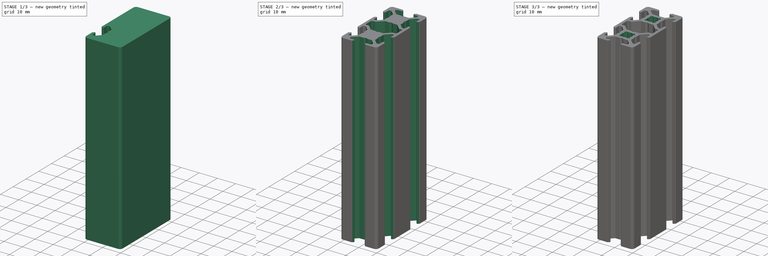
[diagram: build sequence overview — one tinted view per stage of 3, left to right]
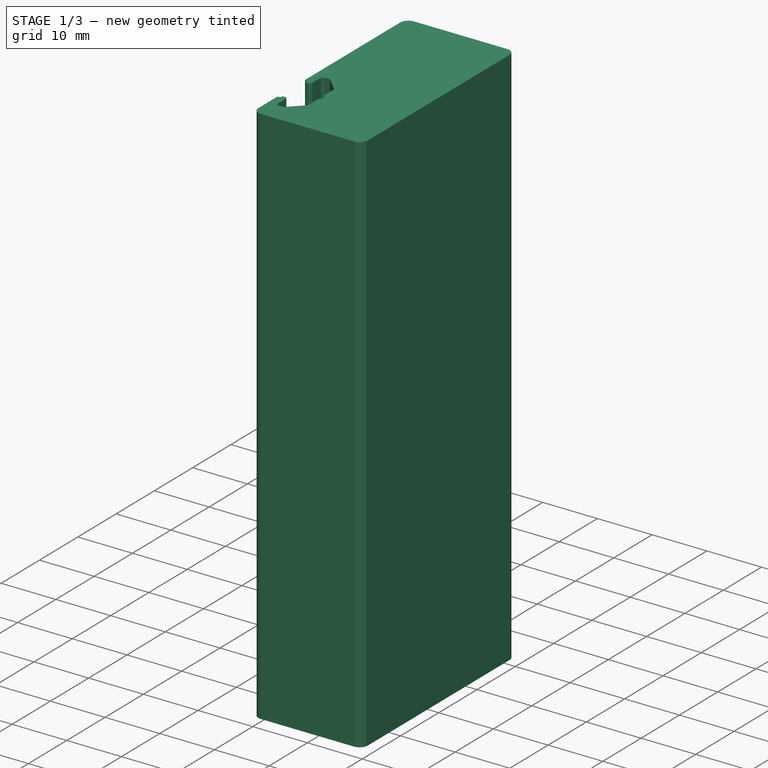
[diagram: stage 1 of 3 — iso view after this stage's code; geometry added in this stage tinted green]
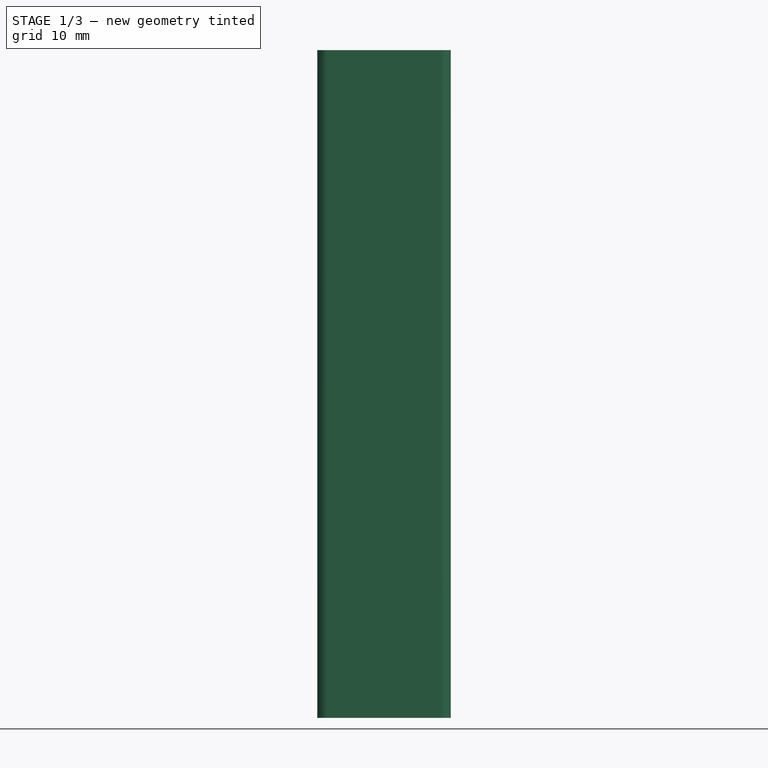
[diagram: stage 1 of 3 — front view after this stage's code; geometry added in this stage tinted green]
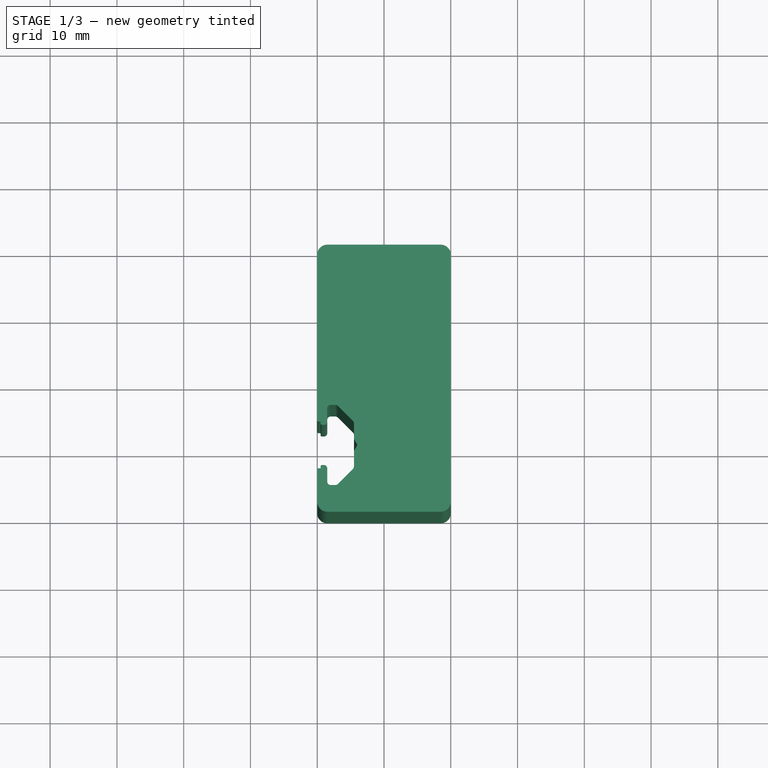
[diagram: stage 1 of 3 — top view after this stage's code; geometry added in this stage tinted green]
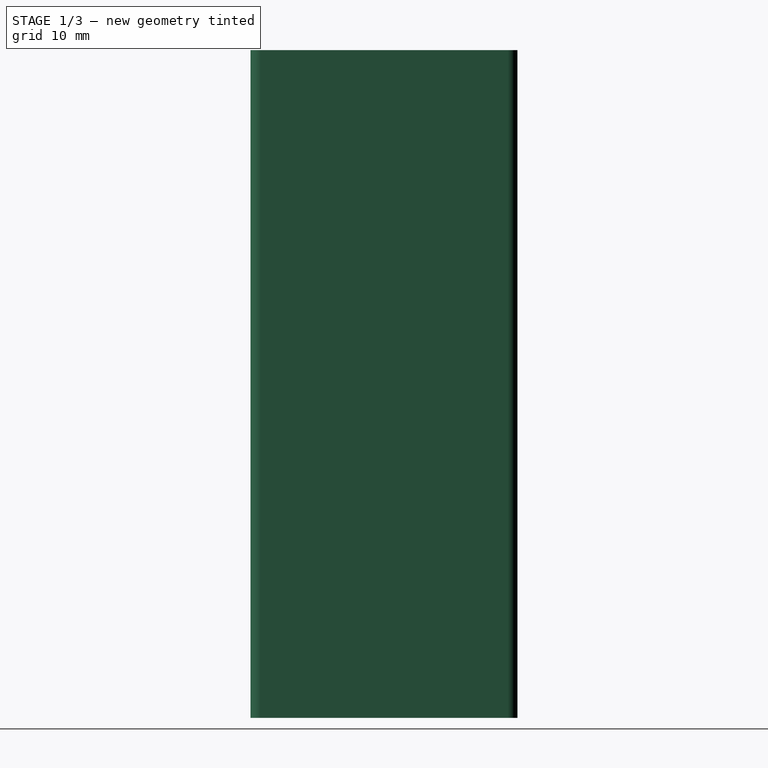
[diagram: stage 1 of 3 — right view after this stage's code; geometry added in this stage tinted green]
FCSTD DOCUMENT  (FreeCAD 0.18R16131 (Git))
Label: Profile-20x40-B-Type_Slot6
License: All rights reserved
LicenseURL: http://en.wikipedia.org/wiki/All_rights_reserved
objects: Sketcher::SketchObject×4, PartDesign::Pocket×3, PartDesign::Mirrored×3, PartDesign::Pad×1, PartDesign::Line×1, PartDesign::PolarPattern×1, PartDesign::MultiTransform×1, PartDesign::Body×1
note: 19 computed .brp shape members not serialized (recipe doc carries the construction recipe); baked Part::Feature solids carry a one-line shape summary decoded from their .brp

FEATURE [Sketcher::SketchObject] Sketch  label="Material_Sketch"
  MapMode = 5
  Support = -> [XY_Plane]
  expr: Constraints[15] = Constraints.Base_Width * 2
  sketch-geometry (8):
    g0: LineSegment StartX=-8.5 StartY=20 StartZ=0 EndX=8.5 EndY=20 EndZ=0
    g1: LineSegment StartX=10 StartY=18.5 StartZ=0 EndX=10 EndY=-18.5 EndZ=0
    g2: LineSegment StartX=8.5 StartY=-20 StartZ=0 EndX=-8.5 EndY=-20 EndZ=0
    g3: LineSegment StartX=-10 StartY=-18.5 StartZ=0 EndX=-10 EndY=18.5 EndZ=0
    g4: ArcOfCircle CenterX=-8.5 CenterY=18.5 CenterZ=0 NormalX=0 NormalY=0 NormalZ=1 AngleXU=0 Radius=1.5 StartAngle=1.5708 EndAngle=3.14159
    g5: ArcOfCircle CenterX=8.5 CenterY=18.5 CenterZ=0 NormalX=0 NormalY=0 NormalZ=1 AngleXU=0 Radius=1.5 StartAngle=0 EndAngle=1.5708
    g6: ArcOfCircle CenterX=-8.5 CenterY=-18.5 CenterZ=0 NormalX=0 NormalY=0 NormalZ=1 AngleXU=0 Radius=1.5 StartAngle=3.14159 EndAngle=4.71239
    g7: ArcOfCircle CenterX=8.5 CenterY=-18.5 CenterZ=0 NormalX=0 NormalY=0 NormalZ=1 AngleXU=0 Radius=1.5 StartAngle=4.71239 EndAngle=6.28319
  constraints (18):
    c: Horizontal(g0)
    c: Vertical(g1)
    c: Vertical(g3)
    c: Tangent(g3,g4) = 1.5708
    c: Tangent(g0,g4) = 1.5708
    c: Tangent(g0,g5) = 1.5708
    c: Tangent(g1,g5) = 1.5708
    c: Radius(g5) = 1.5
    c: Equal(g5,g4)
    c: Tangent(g3,g6) = 1.5708
    c: Tangent(g2,g6) = 1.5708
    c: Tangent(g2,g7) = 1.5708
    c: Tangent(g1,g7) = 1.5708
    c: Equal(g4,g6)
    c: DistanceX(g3,g1) = 20  'Base_Width'
    c: DistanceY(g2,g0) = 40
    c: Symmetric(g3,g1,g-2)
    c: Symmetric(g2,g0,g-1)
FEATURE [PartDesign::Pad] Pad  label="Solid_Material"
  Length = 100
  Length2 = 100
  Profile = -> Sketch
  Type = 0
FEATURE [Sketcher::SketchObject] Sketch001
  MapMode = 5
  Support = -> [XY_Plane]
  expr: Constraints[6] = Sketch.Constraints.Base_Width / 2
  expr: Constraints[3] = Sketch.Constraints.Base_Width
  sketch-geometry (34):
    g0: LineSegment [constr] StartX=-10 StartY=0 StartZ=0 EndX=-10 EndY=-20 EndZ=0
    g1: LineSegment [constr] StartX=-10 StartY=-10 StartZ=0 EndX=10 EndY=-10 EndZ=0
    g2: LineSegment StartX=-9.5 StartY=-6.5 StartZ=0 EndX=-9.5 EndY=-6.8 EndZ=0
    g3: LineSegment StartX=-9.3 StartY=-7 StartZ=0 EndX=-9 EndY=-7 EndZ=0
    g4: LineSegment StartX=-8.5 StartY=-6.5 StartZ=0 EndX=-8.5 EndY=-4.5 EndZ=0
    g5: LineSegment StartX=-8 StartY=-4 StartZ=0 EndX=-7.27 EndY=-4 EndZ=0
    g6: LineSegment StartX=-6.91645 StartY=-4.14645 StartZ=0 EndX=-4.64645 EndY=-6.41645 EndZ=0
    g7: LineSegment StartX=-4.5 StartY=-6.77 StartZ=0 EndX=-4.5 EndY=-9.045 EndZ=0
    g8: LineSegment StartX=-4.47315 StartY=-9.14509 StartZ=0 EndX=-4.03685 EndY=-9.89991 EndZ=0
    g9: LineSegment StartX=-4.03685 StartY=-10.1001 StartZ=0 EndX=-4.47315 EndY=-10.8549 EndZ=0
    g10: LineSegment StartX=-4.5 StartY=-10.955 StartZ=0 EndX=-4.5 EndY=-13.23 EndZ=0
    g11: LineSegment StartX=-4.64645 StartY=-13.5836 StartZ=0 EndX=-6.91645 EndY=-15.8536 EndZ=0
    g12: LineSegment StartX=-7.27 StartY=-16 StartZ=0 EndX=-8 EndY=-16 EndZ=0
    g13: LineSegment StartX=-8.5 StartY=-15.5 StartZ=0 EndX=-8.5 EndY=-13.5 EndZ=0
    g14: LineSegment StartX=-9 StartY=-13 StartZ=0 EndX=-9.3 EndY=-13 EndZ=0
    g15: LineSegment StartX=-9.5 StartY=-13.2 StartZ=0 EndX=-9.5 EndY=-13.5 EndZ=0
    g16: ArcOfCircle CenterX=-9.3 CenterY=-6.8 CenterZ=0 NormalX=0 NormalY=0 NormalZ=1 AngleXU=0 Radius=0.2 StartAngle=3.14159 EndAngle=4.71239
    g17: ArcOfCircle CenterX=-9 CenterY=-6.5 CenterZ=0 NormalX=0 NormalY=0 NormalZ=1 AngleXU=0 Radius=0.5 StartAngle=4.71239 EndAngle=6.28319
    g18: ArcOfCircle CenterX=-8 CenterY=-4.5 CenterZ=0 NormalX=0 NormalY=0 NormalZ=1 AngleXU=0 Radius=0.5 StartAngle=1.5708 EndAngle=3.14159
    g19: ArcOfCircle CenterX=-7.27 CenterY=-4.5 CenterZ=0 NormalX=0 NormalY=0 NormalZ=1 AngleXU=0 Radius=0.5 StartAngle=0.785398 EndAngle=1.5708
    g20: ArcOfCircle CenterX=-5 CenterY=-6.77 CenterZ=0 NormalX=0 NormalY=0 NormalZ=1 AngleXU=0 Radius=0.5 StartAngle=4e-16 EndAngle=0.785398
    g21: ArcOfCircle CenterX=-4.3 CenterY=-9.045 CenterZ=0 NormalX=0 NormalY=0 NormalZ=1 AngleXU=0 Radius=0.2 StartAngle=3.14159 EndAngle=3.6657
    g22: ArcOfCircle CenterX=-4.21 CenterY=-10 CenterZ=0 NormalX=0 NormalY=0 NormalZ=1 AngleXU=0 Radius=0.2 StartAngle=5.75908 EndAngle=6.80729
    g23: ArcOfCircle CenterX=-4.3 CenterY=-10.955 CenterZ=0 NormalX=0 NormalY=0 NormalZ=1 AngleXU=0 Radius=0.2 StartAngle=2.61749 EndAngle=3.14159
    g24: ArcOfCircle CenterX=-5 CenterY=-13.23 CenterZ=0 NormalX=0 NormalY=0 NormalZ=1 AngleXU=0 Radius=0.5 StartAngle=5.49779 EndAngle=6.28319
    g25: ArcOfCircle CenterX=-7.27 CenterY=-15.5 CenterZ=0 NormalX=0 NormalY=0 NormalZ=1 AngleXU=0 Radius=0.5 StartAngle=4.71239 EndAngle=5.49779
    g26: ArcOfCircle CenterX=-8 CenterY=-15.5 CenterZ=0 NormalX=0 NormalY=0 NormalZ=1 AngleXU=0 Radius=0.5 StartAngle=3.14159 EndAngle=4.71239
    g27: ArcOfCircle CenterX=-9 CenterY=-13.5 CenterZ=0 NormalX=0 NormalY=0 NormalZ=1 AngleXU=0 Radius=0.5 StartAngle=0 EndAngle=1.5708
    g28: ArcOfCircle CenterX=-9.3 CenterY=-13.2 CenterZ=0 NormalX=0 NormalY=0 NormalZ=1 AngleXU=0 Radius=0.2 StartAngle=1.5708 EndAngle=3.14159
    g29: LineSegment StartX=-9.5 StartY=-6.5 StartZ=0 EndX=-9.8 EndY=-6.5 EndZ=0
    g30: LineSegment StartX=-9.5 StartY=-13.5 StartZ=0 EndX=-9.8 EndY=-13.5 EndZ=0
    g31: ArcOfCircle CenterX=-9.8 CenterY=-13.7 CenterZ=0 NormalX=0 NormalY=0 NormalZ=1 AngleXU=0 Radius=0.2 StartAngle=1.5708 EndAngle=3.14159
    g32: LineSegment StartX=-10 StartY=-6.3 StartZ=0 EndX=-10 EndY=-13.7 EndZ=0
    g33: ArcOfCircle CenterX=-9.8 CenterY=-6.3 CenterZ=0 NormalX=0 NormalY=0 NormalZ=1 AngleXU=0 Radius=0.2 StartAngle=3.14159 EndAngle=4.71239
  constraints (84):
    c: Vertical(g0)
    c: Horizontal(g1)
    c: Equal(g0,g1)
    c: DistanceY(g0,g0) = 20
    c: Symmetric(g0,g0,g1)
    c: PointOnObject(g0,g-1)
    c: DistanceX(g0,g-1) = 10
    c: Vertical(g2)
    c: Vertical(g4)
    c: Horizontal(g5)
    c: Vertical(g7)
    c: Vertical(g10)
    c: Vertical(g13)
    c: Horizontal(g14)
    c: Vertical(g15)
    c: Horizontal(g3)
    c: Horizontal(g12)
    c: Symmetric(g2,g15,g1)
    c: Tangent(g2,g16) = -1.5708
    c: Tangent(g3,g16) = -1.5708
    c: Tangent(g3,g17) = -1.5708
    c: Tangent(g4,g17) = -1.5708
    c: Tangent(g4,g18) = 1.5708
    c: Tangent(g5,g18) = 1.5708
    c: Tangent(g5,g19) = 1.5708
    c: Tangent(g6,g19) = 1.5708
    c: Tangent(g6,g20) = 1.5708
    c: Tangent(g7,g20) = 1.5708
    c: Tangent(g7,g21) = -1.5708
    c: Tangent(g8,g21) = -1.5708
    c: Tangent(g8,g22) = 1.5708
    c: Tangent(g9,g22) = 1.5708
    c: Tangent(g10,g23) = -1.5708
    c: Tangent(g9,g23) = -1.5708
    c: Tangent(g10,g24) = 1.5708
    c: Tangent(g11,g24) = 1.5708
    c: Tangent(g11,g25) = 1.5708
    c: Tangent(g12,g25) = 1.5708
    c: Tangent(g12,g26) = 1.5708
    c: Tangent(g13,g26) = 1.5708
    c: Tangent(g14,g27) = -1.5708
    c: Tangent(g13,g27) = -1.5708
    c: Tangent(g15,g28) = -1.5708
    c: Tangent(g14,g28) = -1.5708
    c: Equal(g16,g28)
    c: Equal(g17,g27)
    c: Equal(g20,g24)
    c: Radius(g17) = 0.5
    c: Radius(g16) = 0.2
    c: Radius(g18) = 0.5
    c: Radius(g19) = 0.5
    c: Radius(g20) = 0.5
    c: Radius(g21) = 0.2
    c: Radius(g22) = 0.2
    c: PointOnObject(g22,g1)
    c: Coincident(g2,g29)
    c: Coincident(g15,g30)
    c: Horizontal(g30)
    c: Tangent(g30,g31) = -1.5708
    c: Symmetric(g31,g32,g1)
    c: Coincident(g32,g31)
    c: Horizontal(g29)
    c: Symmetric(g18,g26,g1)
    c: Symmetric(g20,g24,g1)
    c: Symmetric(g21,g23,g1)
    c: Symmetric(g17,g27,g1)
    c: DistanceY(g14,g3) = 6
    c: DistanceY(g12,g5) = 12
    c: DistanceY(g24,g20) = 6.46
    c: DistanceX(g31,g24) = 5
    c: DistanceX(g31,g25) = 2.73
    c: DistanceX(g31,g22) = 5.79
    c: Symmetric(g19,g25,g1)
    c: Tangent(g31,g0) = -1.5708
    c: DistanceX(g31,g15) = 0.5
    c: DistanceY(g23,g21) = 1.91
    c: DistanceX(g31,g13) = 1.5
    c: Coincident(g33,g29)
    c: Coincident(g33,g32)
    c: Tangent(g32,g0) = -1.5708
    c: Radius(g33) = 0.2
    c: Equal(g33,g31)
    c: Symmetric(g31,g33,g1)
    c: DistanceY(g15,g2) = 7
FEATURE [PartDesign::Pocket] Pocket  label="Slot"
  BaseFeature = -> Pad
  Length = 5
  Length2 = 100
  Profile = -> Sketch001
  Reversed = true
  Type = 1
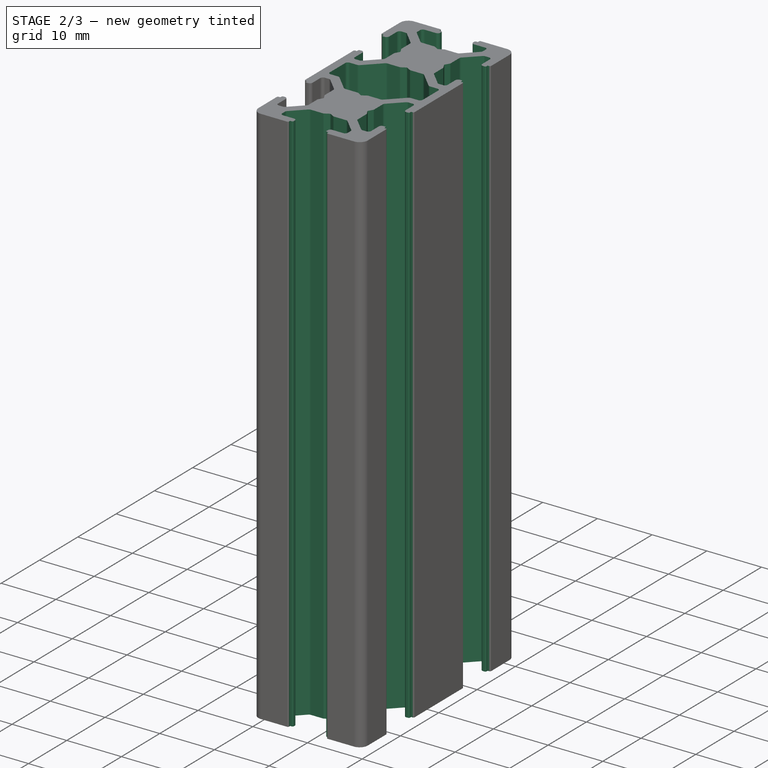
[diagram: stage 2 of 3 — iso view after this stage's code; geometry added in this stage tinted green]
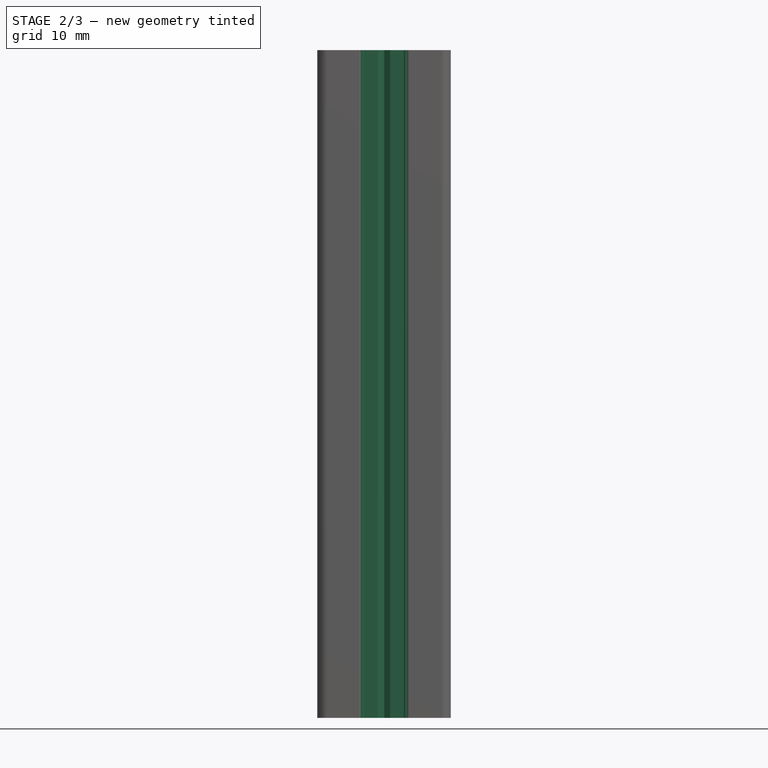
[diagram: stage 2 of 3 — front view after this stage's code; geometry added in this stage tinted green]
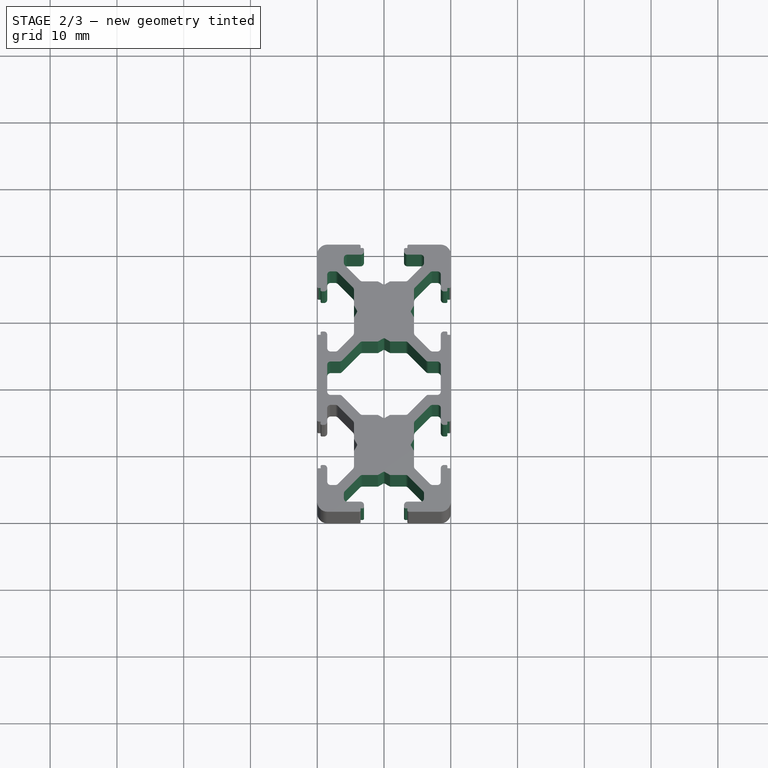
[diagram: stage 2 of 3 — top view after this stage's code; geometry added in this stage tinted green]
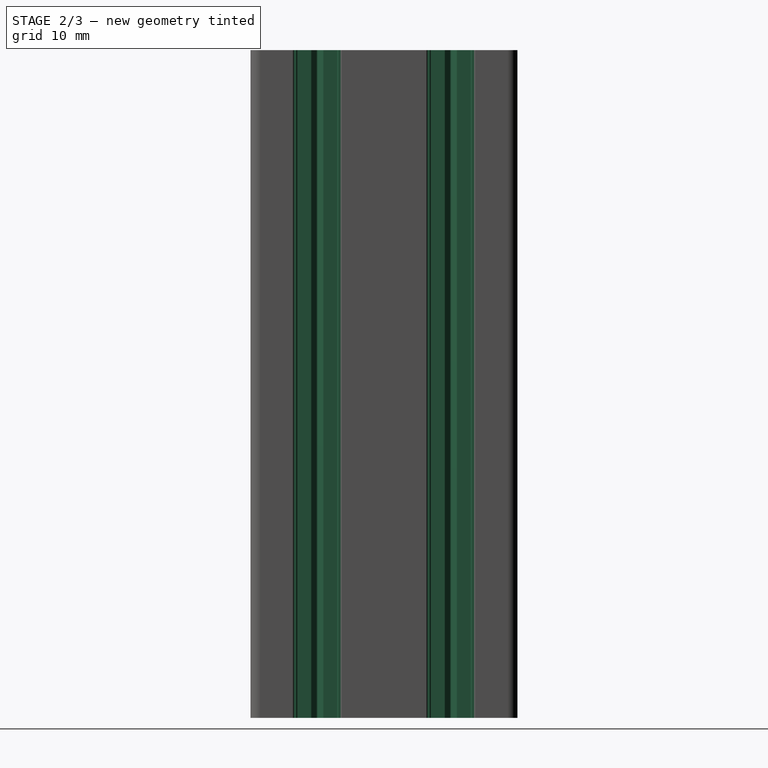
[diagram: stage 2 of 3 — right view after this stage's code; geometry added in this stage tinted green]
FEATURE [PartDesign::Line] DatumLine
  AttacherType = Attacher::AttachEngineLine
  AttachmentOffset = pos=(0,-10,0) rot=(0,0,1;0rad)
  MapMode = 29
  Placement = pos=(0,-10,3.3e-15) rot=(0,0,1;0rad)
  Support = -> [Z_Axis]
  expr: AttachmentOffset.Base.y = -Sketch.Constraints.Base_Width / 2
FEATURE [PartDesign::PolarPattern] PolarPattern
  Angle = 180
  Axis = -> DatumLine
  Occurrences = 3
FEATURE [PartDesign::Mirrored] Mirrored
  MirrorPlane = -> XZ_Plane
FEATURE [PartDesign::MultiTransform] MultiTransform
  BaseFeature = -> Pocket
  Originals = -> [Pocket]
  Transformations = -> [PolarPattern,Mirrored]
FEATURE [Sketcher::SketchObject] Sketch003
  MapMode = 5
  Support = -> [XY_Plane]
  sketch-geometry (20):
    g0: LineSegment StartX=-8.5 StartY=0 StartZ=0 EndX=-8.5 EndY=-2 EndZ=0
    g1: LineSegment StartX=-8 StartY=-2.5 StartZ=0 EndX=-6.645 EndY=-2.5 EndZ=0
    g2: LineSegment StartX=-6.2915 StartY=-2.6464 StartZ=0 EndX=-3.5835 EndY=-5.3536 EndZ=0
    g3: LineSegment StartX=-3.23 StartY=-5.5 StartZ=0 EndX=-0.955 EndY=-5.5 EndZ=0
    g4: LineSegment StartX=3.5835 StartY=-5.3536 StartZ=0 EndX=6.2915 EndY=-2.6464 EndZ=0
    g5: LineSegment StartX=6.645 StartY=-2.5 StartZ=0 EndX=8 EndY=-2.5 EndZ=0
    g6: LineSegment StartX=8.5 StartY=-2 StartZ=0 EndX=8.5 EndY=0 EndZ=0
    g7: LineSegment StartX=8.5 StartY=0 StartZ=0 EndX=-8.5 EndY=0 EndZ=0
    g8: ArcOfCircle CenterX=-8 CenterY=-2 CenterZ=0 NormalX=0 NormalY=0 NormalZ=1 AngleXU=0 Radius=0.5 StartAngle=3.14159 EndAngle=4.71239
    g9: ArcOfCircle CenterX=-6.645 CenterY=-3 CenterZ=0 NormalX=0 NormalY=0 NormalZ=1 AngleXU=0 Radius=0.5 StartAngle=0.785543 EndAngle=1.5708
    g10: ArcOfCircle CenterX=-3.23 CenterY=-5 CenterZ=0 NormalX=0 NormalY=0 NormalZ=1 AngleXU=0 Radius=0.5 StartAngle=3.92714 EndAngle=4.71239
    g11: ArcOfCircle CenterX=3.23 CenterY=-5 CenterZ=0 NormalX=0 NormalY=0 NormalZ=1 AngleXU=0 Radius=0.5 StartAngle=4.71239 EndAngle=5.49764
    g12: ArcOfCircle CenterX=6.645 CenterY=-3 CenterZ=0 NormalX=0 NormalY=0 NormalZ=1 AngleXU=0 Radius=0.5 StartAngle=1.5708 EndAngle=2.35605
    g13: ArcOfCircle CenterX=8 CenterY=-2 CenterZ=0 NormalX=0 NormalY=0 NormalZ=1 AngleXU=0 Radius=0.5 StartAngle=4.71239 EndAngle=6.28319
    g14: LineSegment StartX=-0.854912 StartY=-5.52685 StartZ=0 EndX=-0.100088 EndY=-5.96315 EndZ=0
    g15: LineSegment StartX=0.100088 StartY=-5.96315 StartZ=0 EndX=0.854912 EndY=-5.52685 EndZ=0
    g16: LineSegment StartX=0.955 StartY=-5.5 StartZ=0 EndX=3.23 EndY=-5.5 EndZ=0
    g17: ArcOfCircle CenterX=-0.955 CenterY=-5.7 CenterZ=0 NormalX=0 NormalY=0 NormalZ=1 AngleXU=0 Radius=0.2 StartAngle=1.04669 EndAngle=1.5708
    g18: ArcOfCircle CenterX=0 CenterY=-5.79 CenterZ=0 NormalX=0 NormalY=0 NormalZ=1 AngleXU=0 Radius=0.2 StartAngle=4.18828 EndAngle=5.23649
    g19: ArcOfCircle CenterX=0.955 CenterY=-5.7 CenterZ=0 NormalX=0 NormalY=0 NormalZ=1 AngleXU=0 Radius=0.2 StartAngle=1.5708 EndAngle=2.0949
  constraints (46):
    c: PointOnObject(g0,g-1)
    c: Vertical(g0)
    c: Horizontal(g1)
    c: Horizontal(g3)
    c: Horizontal(g5)
    c: Vertical(g6)
    c: Coincident(g6,g7)
    c: Coincident(g7,g0)
    c: Symmetric(g0,g6,g-2)
    c: Tangent(g0,g8) = -1.5708
    c: Tangent(g1,g8) = -1.5708
    c: Tangent(g1,g9) = 1.5708
    c: Tangent(g2,g9) = 1.5708
    c: Tangent(g2,g10) = -1.5708
    c: Tangent(g3,g10) = -1.5708
    c: Tangent(g4,g12) = 1.5708
    c: Tangent(g5,g12) = 1.5708
    c: Tangent(g6,g13) = -1.5708
    c: Tangent(g5,g13) = -1.5708
    c: Radius(g8) = 0.5
    c: Equal(g8,g9)
    c: Equal(g9,g10)
    c: Equal(g11,g12)
    c: Equal(g12,g13)
    c: Symmetric(g10,g11,g-2)
    c: Symmetric(g12,g9,g-2)
    c: DistanceY(g8,g0) = 2
    c: DistanceX(g8,g13) = 16
    c: DistanceX(g9,g12) = 13.29
    c: DistanceY(g10,g9) = 2
    c: Tangent(g3,g16)
    c: Tangent(g3,g17) = 1.5708
    c: Tangent(g14,g17) = 1.5708
    c: Tangent(g14,g18) = -1.5708
    c: Tangent(g15,g18) = -1.5708
    c: Tangent(g15,g19) = 1.5708
    c: Tangent(g16,g19) = 1.5708
    c: Radius(g17) = 0.2
    c: Equal(g17,g18)
    c: PointOnObject(g18,g-2)
    c: Tangent(g16,g11) = -1.5708
    c: Tangent(g11,g4) = -1.5708
    c: Symmetric(g17,g19,g-2)
    c: DistanceX(g17,g19) = 1.91
    c: DistanceX(g10,g11) = 6.46
    c: DistanceY(g18,g8) = 3.79
FEATURE [PartDesign::Pocket] Pocket002
  BaseFeature = -> MultiTransform
  Length = 5
  Length2 = 100
  Profile = -> Sketch003
  Reversed = true
  Type = 1
FEATURE [PartDesign::Mirrored] Mirrored002
  BaseFeature = -> Pocket002
  MirrorPlane = -> XZ_Plane
  Originals = -> [Pocket002]
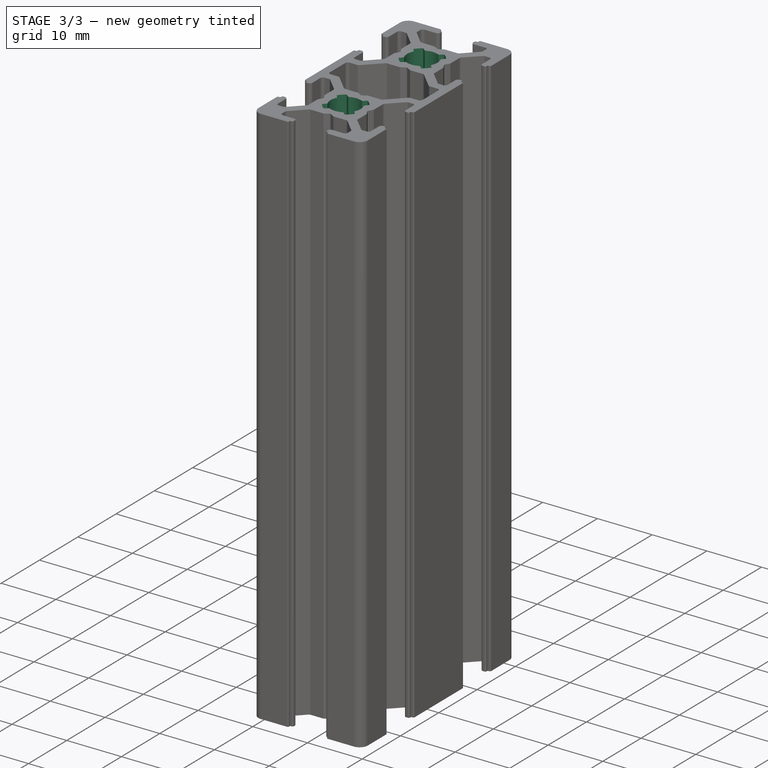
[diagram: stage 3 of 3 — iso view after this stage's code; geometry added in this stage tinted green]
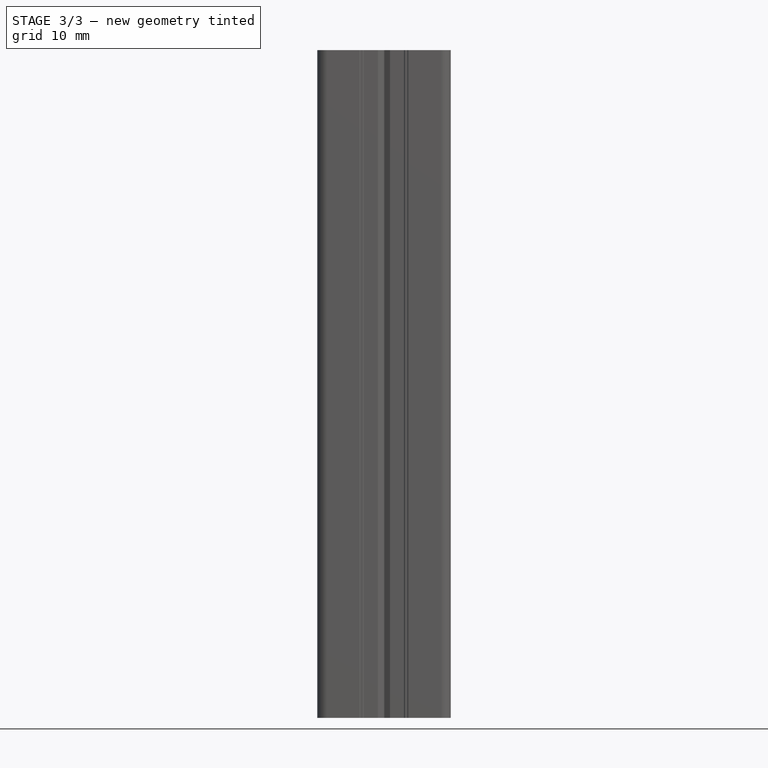
[diagram: stage 3 of 3 — front view after this stage's code; geometry added in this stage tinted green]
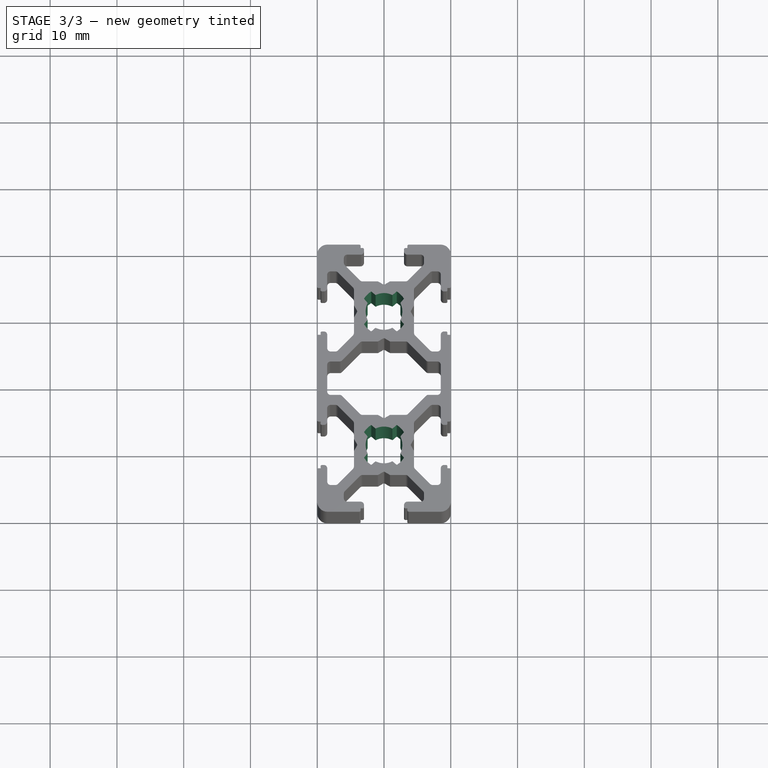
[diagram: stage 3 of 3 — top view after this stage's code; geometry added in this stage tinted green]
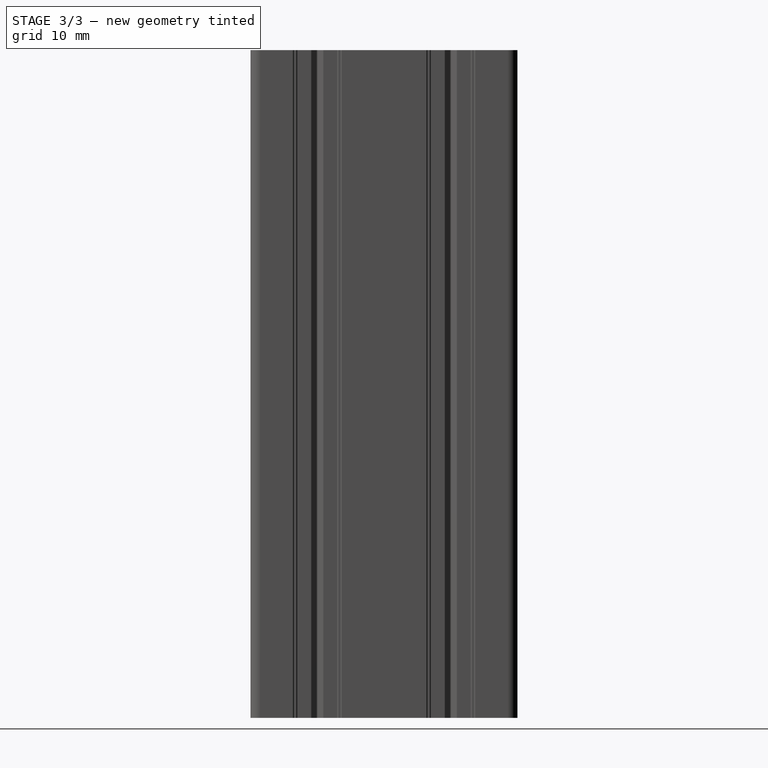
[diagram: stage 3 of 3 — right view after this stage's code; geometry added in this stage tinted green]
FEATURE [Sketcher::SketchObject] Sketch004
  MapMode = 5
  Support = -> [XY_Plane]
  expr: Constraints[48] = Sketch.Constraints.Base_Width
  expr: Constraints[47] = Sketch.Constraints.Base_Width
  expr: Constraints[43] = Constraints.width
  expr: Constraints[36] = Constraints.angle
  expr: Constraints[39] = Constraints.width
  expr: Constraints[37] = Constraints.angle
  expr: Constraints[38] = Constraints.angle
  expr: Constraints[40] = Constraints.width
  sketch-geometry (18):
    g0: ArcOfCircle CenterX=2e-16 CenterY=-10 CenterZ=0 NormalX=0 NormalY=0 NormalZ=1 AngleXU=0 Radius=2.75 StartAngle=1.09581 EndAngle=2.04578
    g1: ArcOfCircle CenterX=2e-16 CenterY=-10 CenterZ=0 NormalX=0 NormalY=0 NormalZ=1 AngleXU=0 Radius=3.55 StartAngle=2.13942 EndAngle=2.57297
    g2: LineSegment StartX=-2.99138 StartY=-8.08843 StartZ=0 EndX=-2.44558 EndY=-8.74236 EndZ=0
    g3: LineSegment StartX=-1.91157 StartY=-7.00862 StartZ=0 EndX=-1.25764 EndY=-7.55442 EndZ=0
    g4: LineSegment [constr] StartX=-10 StartY=-20 StartZ=0 EndX=10 EndY=0 EndZ=0
    g5: LineSegment [constr] StartX=-10 StartY=0 StartZ=0 EndX=10 EndY=-20 EndZ=0
    g6: ArcOfCircle CenterX=2e-16 CenterY=-10 CenterZ=0 NormalX=0 NormalY=0 NormalZ=1 AngleXU=0 Radius=2.75 StartAngle=5.8082 EndAngle=6.75817
    g7: ArcOfCircle CenterX=2e-16 CenterY=-10 CenterZ=0 NormalX=0 NormalY=0 NormalZ=1 AngleXU=0 Radius=2.75 StartAngle=4.23741 EndAngle=5.18737
    g8: ArcOfCircle CenterX=2e-16 CenterY=-10 CenterZ=0 NormalX=0 NormalY=0 NormalZ=1 AngleXU=0 Radius=2.75 StartAngle=2.66661 EndAngle=3.61658
    g9: ArcOfCircle CenterX=2e-16 CenterY=-10 CenterZ=0 NormalX=0 NormalY=0 NormalZ=1 AngleXU=0 Radius=3.55 StartAngle=0.568622 EndAngle=1.00217
    g10: ArcOfCircle CenterX=2e-16 CenterY=-10 CenterZ=0 NormalX=0 NormalY=0 NormalZ=1 AngleXU=0 Radius=3.55 StartAngle=5.28101 EndAngle=5.71456
    g11: ArcOfCircle CenterX=2e-16 CenterY=-10 CenterZ=0 NormalX=0 NormalY=0 NormalZ=1 AngleXU=0 Radius=3.55 StartAngle=3.71022 EndAngle=4.14377
    g12: LineSegment StartX=-2.99138 StartY=-11.9116 StartZ=0 EndX=-2.44558 EndY=-11.2576 EndZ=0
    g13: LineSegment StartX=-1.91157 StartY=-12.9914 StartZ=0 EndX=-1.25764 EndY=-12.4456 EndZ=0
    g14: LineSegment StartX=1.25764 StartY=-12.4456 StartZ=0 EndX=1.91157 EndY=-12.9914 EndZ=0
    g15: LineSegment StartX=2.99138 StartY=-11.9116 StartZ=0 EndX=2.44558 EndY=-11.2576 EndZ=0
    g16: LineSegment StartX=2.44558 StartY=-8.74236 StartZ=0 EndX=2.99138 EndY=-8.08843 EndZ=0
    g17: LineSegment StartX=1.91157 StartY=-7.00862 StartZ=0 EndX=1.25764 EndY=-7.55442 EndZ=0
  constraints (54):
    c: Coincident(g1,g0)
    c: Coincident(g2,g1)
    c: Coincident(g3,g1)
    c: Coincident(g3,g0)
    c: Angle(g2,g3) = 0.179769  'angle'
    c: Horizontal(g4,g5)
    c: Radius(g0) = 2.75
    c: Radius(g1) = 3.55
    c: Symmetric(g1,g1,g5)
    c: Coincident(g6,g0)
    c: Coincident(g7,g0)
    c: Coincident(g8,g0)
    c: Coincident(g8,g2)
    c: Equal(g0,g6)
    c: Coincident(g9,g0)
    c: Coincident(g10,g0)
    c: Coincident(g11,g0)
    c: Coincident(g12,g11)
    c: Coincident(g12,g8)
    c: Coincident(g13,g11)
    c: Coincident(g13,g7)
    c: Coincident(g14,g7)
    c: Coincident(g14,g10)
    c: Coincident(g15,g10)
    c: Coincident(g15,g6)
    c: Coincident(g16,g6)
    c: Coincident(g16,g9)
    c: Coincident(g17,g9)
    c: Coincident(g17,g0)
    c: Equal(g1,g9)
    c: Equal(g9,g10)
    c: Equal(g10,g11)
    c: Symmetric(g9,g9,g4)
    c: Symmetric(g10,g10,g5)
    c: Symmetric(g11,g11,g4)
    c: Distance(g2,g0) = 1.68  'width'
    c: Angle(g17,g16) = 0.179769
    c: Angle(g15,g14) = 0.179769
    c: Angle(g13,g12) = 0.179769
    c: Distance(g0,g6) = 1.68
    c: Distance(g7,g6) = 1.68
    c: Symmetric(g8,g7,g4)
    c: Symmetric(g7,g6,g5)
    c: Distance(g7,g8) = 1.68
    c: Symmetric(g2,g0,g5)
    c: Symmetric(g0,g6,g4)
    c: Equal(g5,g4)
    c: DistanceX(g5,g4) = 20
    c: DistanceY(g5,g4) = 20
    c: Vertical(g5,g4)
    c: Equal(g3,g2)
    c: Equal(g4,g5)
    c: Symmetric(g5,g4,g-2)
    c: PointOnObject(g5,g-1)
FEATURE [PartDesign::Pocket] Pocket003
  BaseFeature = -> Mirrored002
  Length = 5
  Length2 = 100
  Profile = -> Sketch004
  Reversed = true
  Type = 1
FEATURE [PartDesign::Mirrored] Mirrored003
  BaseFeature = -> Pocket003
  MirrorPlane = -> XZ_Plane
  Originals = -> [Pocket003]
FEATURE [PartDesign::Body] Body
  Group = -> [Sketch,Pad,Sketch001,Pocket,DatumLine,MultiTransform,PolarPattern,Mirrored,Sketch003,Pocket002,Mirrored002,Sketch004,Pocket003,Mirrored003]
  Origin = -> Origin
  Tip = -> Mirrored003
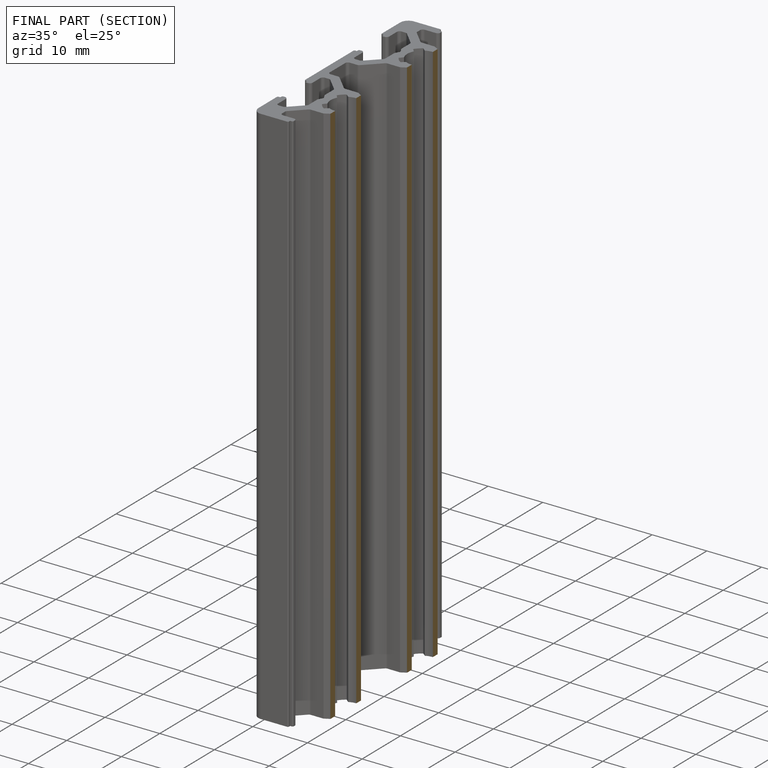
[diagram: finished part — half-section view (interior)]
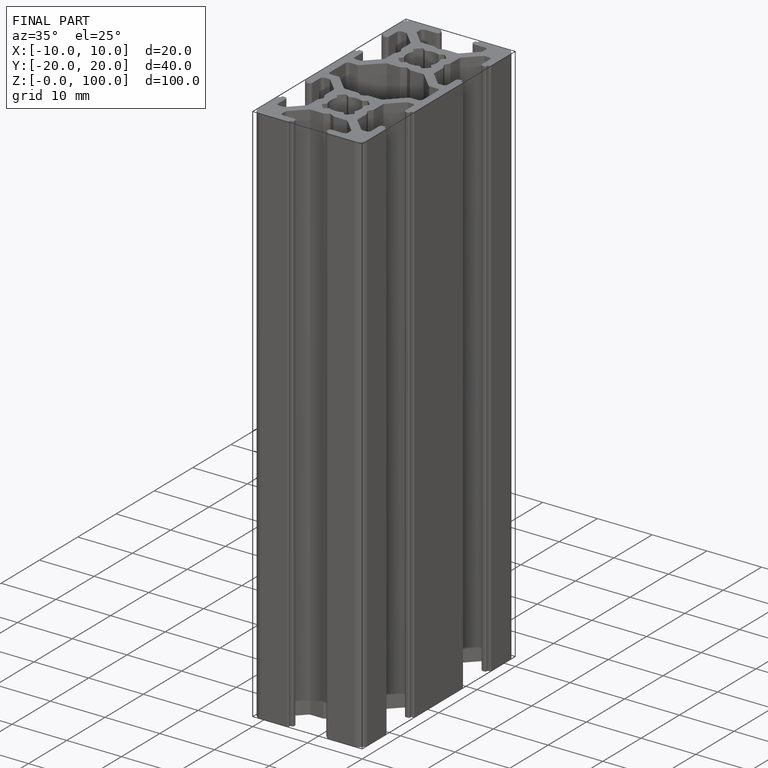
[diagram: finished part — iso view with bounding-box wireframe]
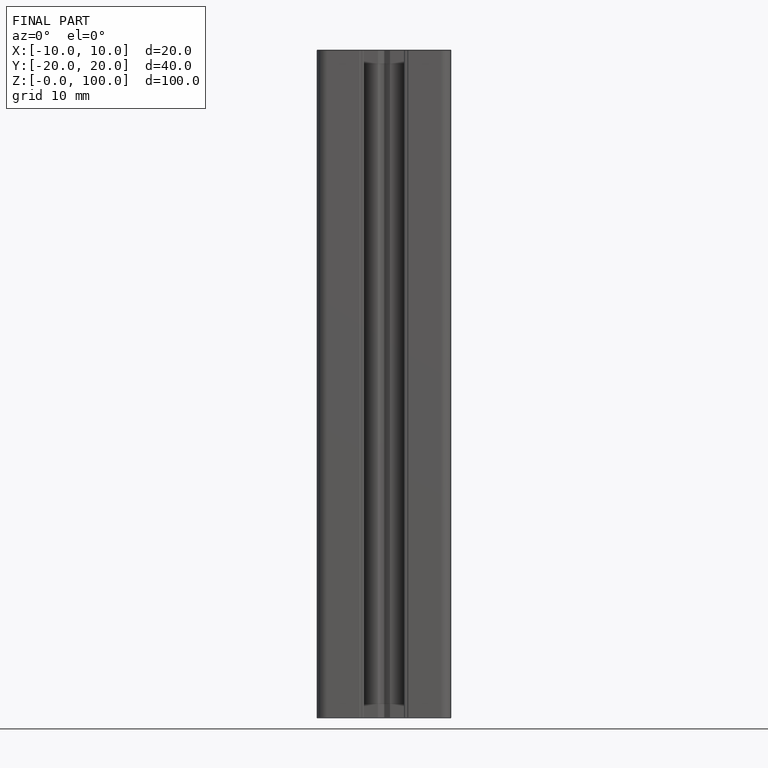
[diagram: finished part — front view with bounding-box wireframe]
